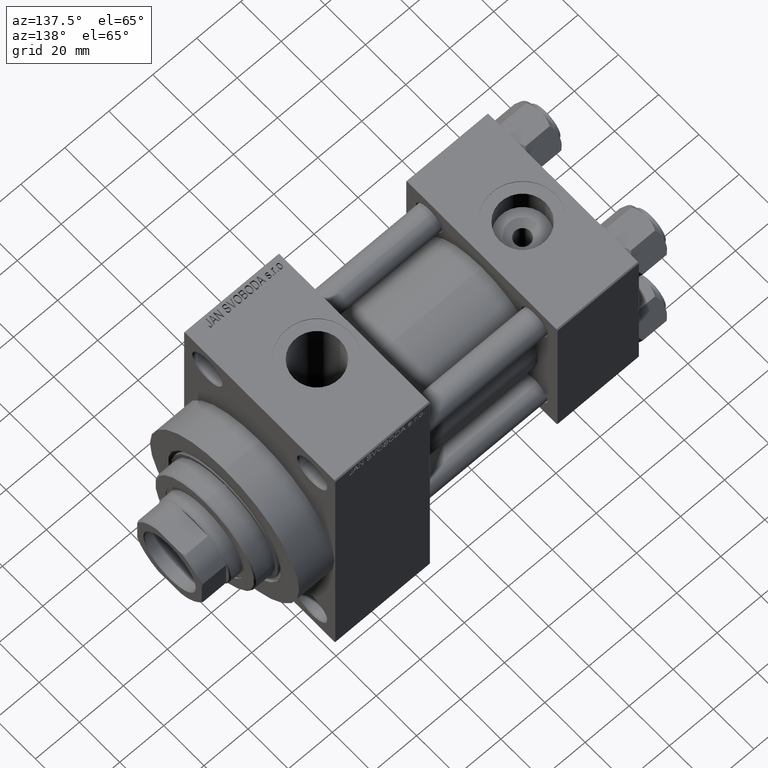
[diagram: clean part render]
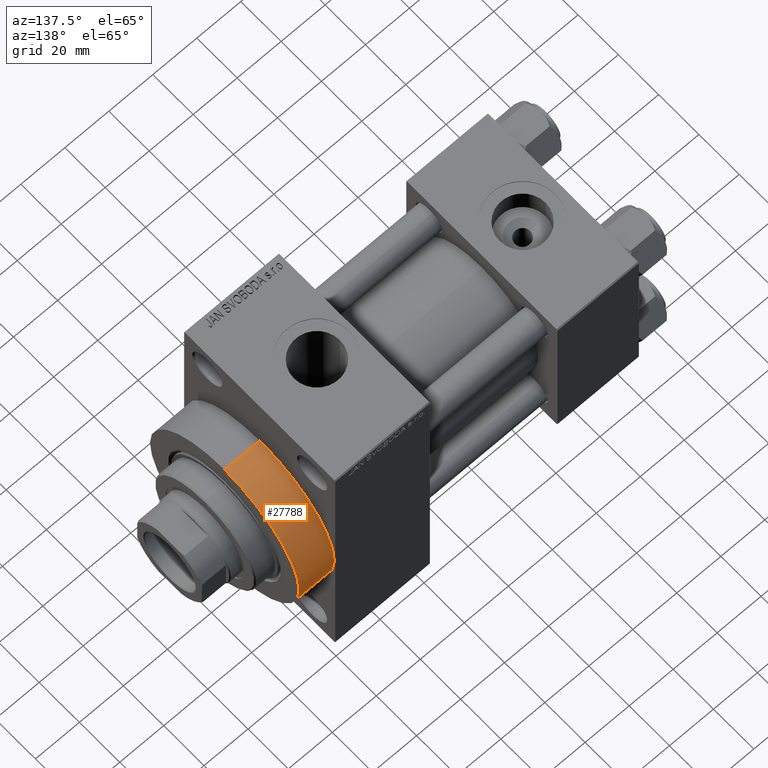
[diagram: same view with one face highlighted and labeled with its STEP entity id]
A machine part, auxiliary view. The second image highlights one B-rep face of the part: STEP entity #27788.
In plain terms, the highlighted cylindrical surface (partial cylindrical patch) has radius 37 mm, axis along (-1, -0, -0).
Its self-contained STEP definition (entity closure, byte-faithful):
#1163 = VERTEX_POINT ( 'NONE', #9877 ) ;
#1951 = ORIENTED_EDGE ( 'NONE', *, *, #34044, .T. ) ;
#3340 = DIRECTION ( 'NONE',  ( 0.000000000000000000, 0.000000000000000000, -1.000000000000000000 ) ) ;
#7877 = DIRECTION ( 'NONE',  ( -1.000000000000000000, -0.000000000000000000, -0.000000000000000000 ) ) ;
#9766 = CARTESIAN_POINT ( 'NONE',  ( 154.0000000000000284, 4.531193156845206793E-15, -37.00000000000000000 ) ) ;
#9877 = CARTESIAN_POINT ( 'NONE',  ( 138.0000000000000000, 0.000000000000000000, 37.00000000000000000 ) ) ;
#10842 = EDGE_CURVE ( 'NONE', #35862, #1163, #20810, .T. ) ;
#11493 = FACE_OUTER_BOUND ( 'NONE', #39484, .T. ) ;
#12769 = CIRCLE ( 'NONE', #18085, 37.00000000000000000 ) ;
#12940 = ORIENTED_EDGE ( 'NONE', *, *, #46347, .F. ) ;
#14175 = AXIS2_PLACEMENT_3D ( 'NONE', #44382, #7877, #44621 ) ;
#14419 = CARTESIAN_POINT ( 'NONE',  ( 154.0000000000000284, 0.000000000000000000, 0.000000000000000000 ) ) ;
#16487 = CARTESIAN_POINT ( 'NONE',  ( 154.0000000000000284, 0.000000000000000000, 37.00000000000000000 ) ) ;
#17688 = DIRECTION ( 'NONE',  ( 1.000000000000000000, 0.000000000000000000, 0.000000000000000000 ) ) ;
#18085 = AXIS2_PLACEMENT_3D ( 'NONE', #14419, #18239, #3340 ) ;
#18239 = DIRECTION ( 'NONE',  ( 1.000000000000000000, 0.000000000000000000, 0.000000000000000000 ) ) ;
#18729 = CARTESIAN_POINT ( 'NONE',  ( 154.0000000000000284, 4.531193156845206793E-15, -37.00000000000000000 ) ) ;
#19732 = VERTEX_POINT ( 'NONE', #18729 ) ;
#19886 = ORIENTED_EDGE ( 'NONE', *, *, #31771, .T. ) ;
#20610 = VECTOR ( 'NONE', #36796, 1000.000000000000000 ) ;
#20810 = LINE ( 'NONE', #39295, #20610 ) ;
#23886 = VECTOR ( 'NONE', #24853, 1000.000000000000000 ) ;
#24853 = DIRECTION ( 'NONE',  ( -1.000000000000000000, -0.000000000000000000, -0.000000000000000000 ) ) ;
#27788 = ADVANCED_FACE ( 'NONE', ( #11493 ), #29971, .T. ) ;
#29971 = CYLINDRICAL_SURFACE ( 'NONE', #14175, 37.00000000000000000 ) ;
#31771 = EDGE_CURVE ( 'NONE', #19732, #39714, #46483, .T. ) ;
#32371 = CIRCLE ( 'NONE', #43893, 37.00000000000000000 ) ;
#32566 = CARTESIAN_POINT ( 'NONE',  ( 138.0000000000000000, 0.000000000000000000, 0.000000000000000000 ) ) ;
#34044 = EDGE_CURVE ( 'NONE', #39714, #1163, #32371, .T. ) ;
#34511 = ORIENTED_EDGE ( 'NONE', *, *, #10842, .F. ) ;
#35862 = VERTEX_POINT ( 'NONE', #16487 ) ;
#36796 = DIRECTION ( 'NONE',  ( -1.000000000000000000, -0.000000000000000000, -0.000000000000000000 ) ) ;
#39292 = DIRECTION ( 'NONE',  ( 0.000000000000000000, 0.000000000000000000, -1.000000000000000000 ) ) ;
#39295 = CARTESIAN_POINT ( 'NONE',  ( 154.0000000000000284, 0.000000000000000000, 37.00000000000000000 ) ) ;
#39484 = EDGE_LOOP ( 'NONE', ( #12940, #19886, #1951, #34511 ) ) ;
#39714 = VERTEX_POINT ( 'NONE', #44438 ) ;
#43893 = AXIS2_PLACEMENT_3D ( 'NONE', #32566, #17688, #39292 ) ;
#44382 = CARTESIAN_POINT ( 'NONE',  ( 154.0000000000000284, 0.000000000000000000, 0.000000000000000000 ) ) ;
#44438 = CARTESIAN_POINT ( 'NONE',  ( 138.0000000000000000, 4.531193156845206793E-15, -37.00000000000000000 ) ) ;
#44621 = DIRECTION ( 'NONE',  ( 0.000000000000000000, 0.000000000000000000, 1.000000000000000000 ) ) ;
#46347 = EDGE_CURVE ( 'NONE', #19732, #35862, #12769, .T. ) ;
#46483 = LINE ( 'NONE', #9766, #23886 ) ;